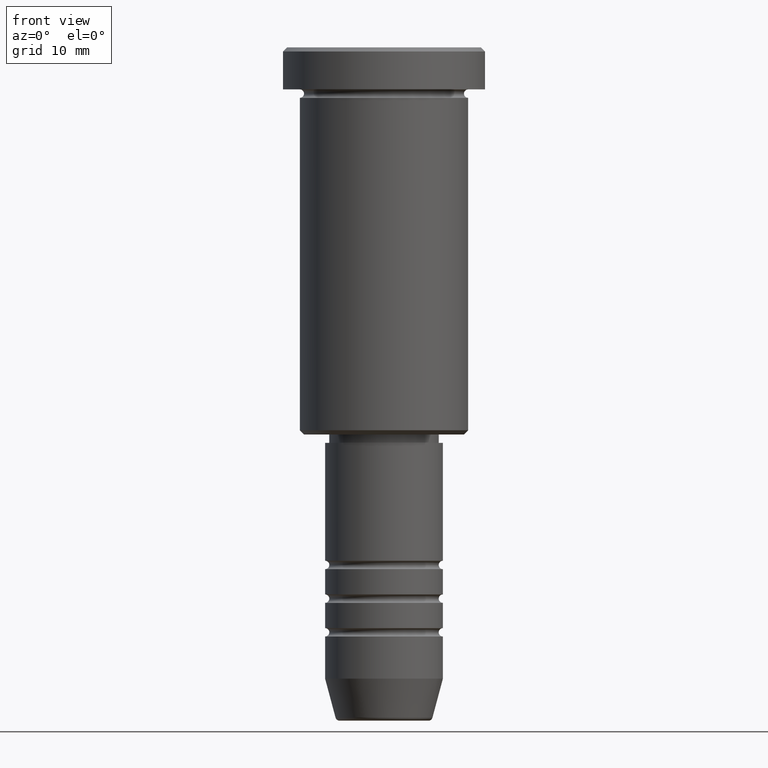
[diagram: clean part render]
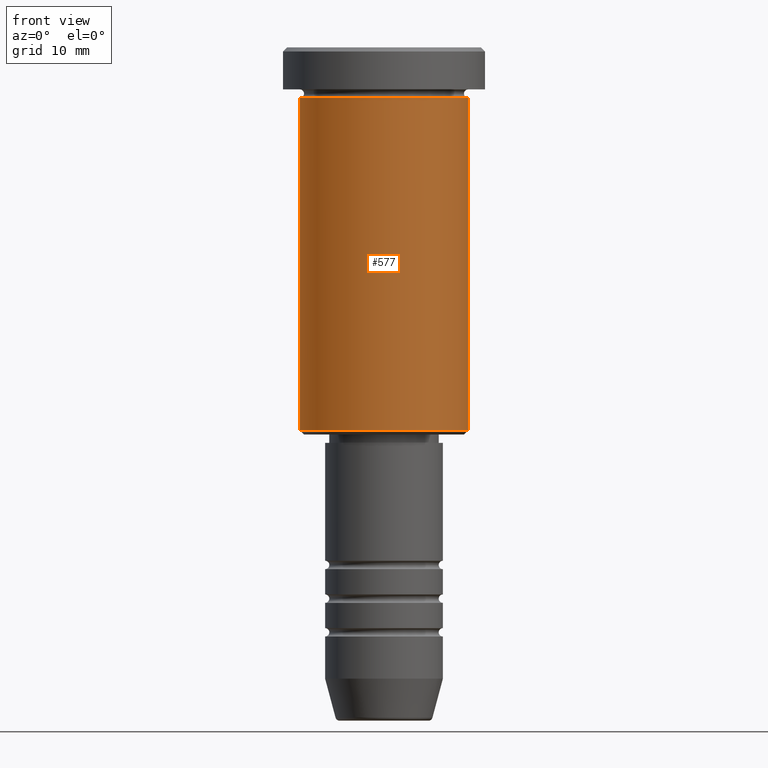
[diagram: same view with one face highlighted and labeled with its STEP entity id]
A machine part, front view. The second image highlights one B-rep face of the part: STEP entity #577.
In plain terms, the highlighted cylindrical surface (partial cylindrical patch) has radius 10 mm, axis along (-0, -0, 1).
Its self-contained STEP definition (entity closure, byte-faithful):
#56 = ORIENTED_EDGE ( 'NONE', *, *, #671, .F. ) ;
#72 = VERTEX_POINT ( 'NONE', #1014 ) ;
#106 = VERTEX_POINT ( 'NONE', #370 ) ;
#124 = DIRECTION ( 'NONE',  ( 1.000000000000000000, 0.000000000000000000, 0.000000000000000000 ) ) ;
#149 = LINE ( 'NONE', #587, #481 ) ;
#176 = EDGE_CURVE ( 'NONE', #72, #106, #950, .T. ) ;
#203 = CIRCLE ( 'NONE', #843, 9.999999999999998224 ) ;
#208 = DIRECTION ( 'NONE',  ( -0.000000000000000000, -0.000000000000000000, 1.000000000000000000 ) ) ;
#220 = VERTEX_POINT ( 'NONE', #792 ) ;
#251 = ORIENTED_EDGE ( 'NONE', *, *, #176, .T. ) ;
#259 = AXIS2_PLACEMENT_3D ( 'NONE', #379, #208, #124 ) ;
#272 = DIRECTION ( 'NONE',  ( -0.000000000000000000, -0.000000000000000000, 1.000000000000000000 ) ) ;
#370 = CARTESIAN_POINT ( 'NONE',  ( 10.00000000000000000, 0.000000000000000000, -6.000000000000000000 ) ) ;
#379 = CARTESIAN_POINT ( 'NONE',  ( 0.000000000000000000, 0.000000000000000000, -6.000000000000000000 ) ) ;
#401 = CARTESIAN_POINT ( 'NONE',  ( -9.999999999999998224, 1.224646799147353059E-15, -45.50000000000000711 ) ) ;
#414 = EDGE_CURVE ( 'NONE', #1110, #72, #203, .T. ) ;
#481 = VECTOR ( 'NONE', #775, 1000.000000000000000 ) ;
#534 = EDGE_CURVE ( 'NONE', #220, #106, #594, .T. ) ;
#577 = ADVANCED_FACE ( 'NONE', ( #974 ), #857, .T. ) ;
#587 = CARTESIAN_POINT ( 'NONE',  ( -9.999999999999998224, 1.224646799147353059E-15, 0.000000000000000000 ) ) ;
#594 = CIRCLE ( 'NONE', #259, 10.00000000000000000 ) ;
#628 = EDGE_LOOP ( 'NONE', ( #56, #1157, #251, #1032 ) ) ;
#671 = EDGE_CURVE ( 'NONE', #1110, #220, #149, .T. ) ;
#677 = CARTESIAN_POINT ( 'NONE',  ( 0.000000000000000000, 0.000000000000000000, 0.000000000000000000 ) ) ;
#688 = DIRECTION ( 'NONE',  ( -0.000000000000000000, -0.000000000000000000, 1.000000000000000000 ) ) ;
#775 = DIRECTION ( 'NONE',  ( -0.000000000000000000, -0.000000000000000000, 1.000000000000000000 ) ) ;
#792 = CARTESIAN_POINT ( 'NONE',  ( -10.00000000000000000, 1.224646799147353256E-15, -6.000000000000000000 ) ) ;
#843 = AXIS2_PLACEMENT_3D ( 'NONE', #1093, #272, #910 ) ;
#857 = CYLINDRICAL_SURFACE ( 'NONE', #1132, 9.999999999999998224 ) ;
#868 = DIRECTION ( 'NONE',  ( -0.000000000000000000, -0.000000000000000000, 1.000000000000000000 ) ) ;
#910 = DIRECTION ( 'NONE',  ( -1.000000000000000000, 0.000000000000000000, 0.000000000000000000 ) ) ;
#950 = LINE ( 'NONE', #1161, #1152 ) ;
#961 = DIRECTION ( 'NONE',  ( 1.000000000000000000, 0.000000000000000000, 0.000000000000000000 ) ) ;
#974 = FACE_OUTER_BOUND ( 'NONE', #628, .T. ) ;
#1014 = CARTESIAN_POINT ( 'NONE',  ( 9.999999999999998224, 0.000000000000000000, -45.50000000000000711 ) ) ;
#1032 = ORIENTED_EDGE ( 'NONE', *, *, #534, .F. ) ;
#1093 = CARTESIAN_POINT ( 'NONE',  ( 0.000000000000000000, 0.000000000000000000, -45.50000000000000711 ) ) ;
#1110 = VERTEX_POINT ( 'NONE', #401 ) ;
#1132 = AXIS2_PLACEMENT_3D ( 'NONE', #677, #688, #961 ) ;
#1152 = VECTOR ( 'NONE', #868, 1000.000000000000000 ) ;
#1157 = ORIENTED_EDGE ( 'NONE', *, *, #414, .T. ) ;
#1161 = CARTESIAN_POINT ( 'NONE',  ( 9.999999999999998224, 0.000000000000000000, 0.000000000000000000 ) ) ;